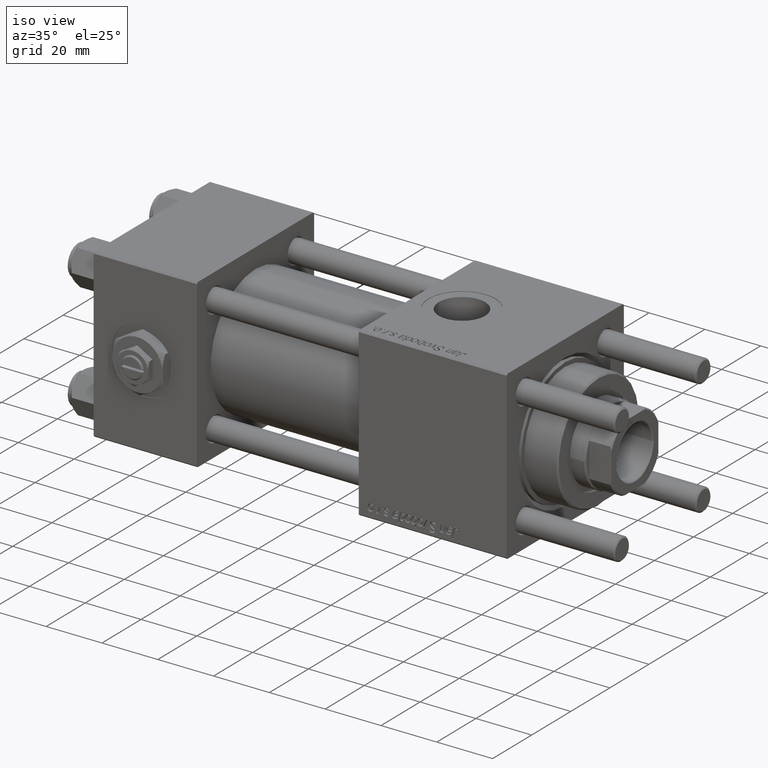
[diagram: clean part render]
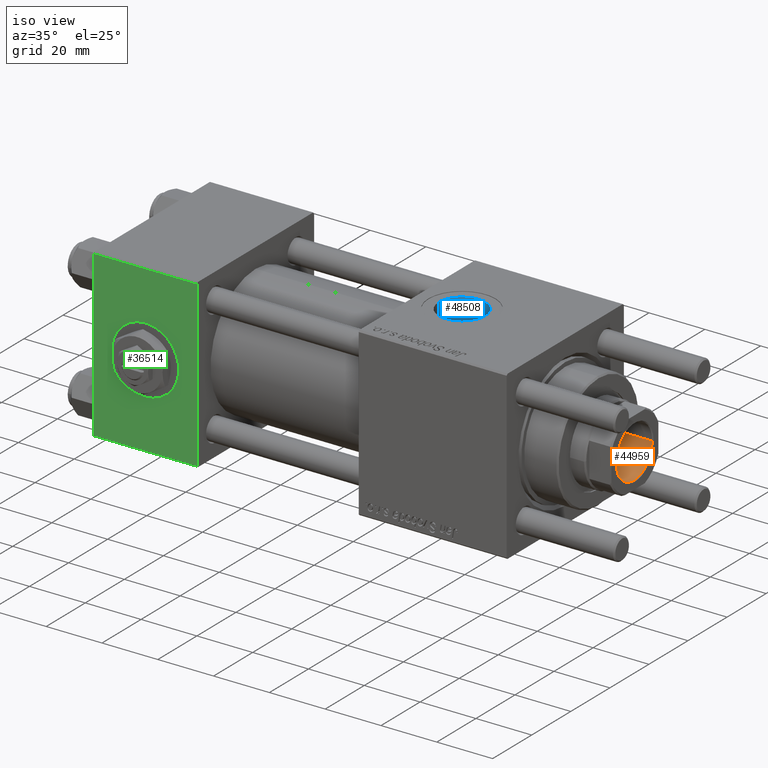
[diagram: same view with three faces highlighted in distinct colors, each labeled with its STEP entity id]
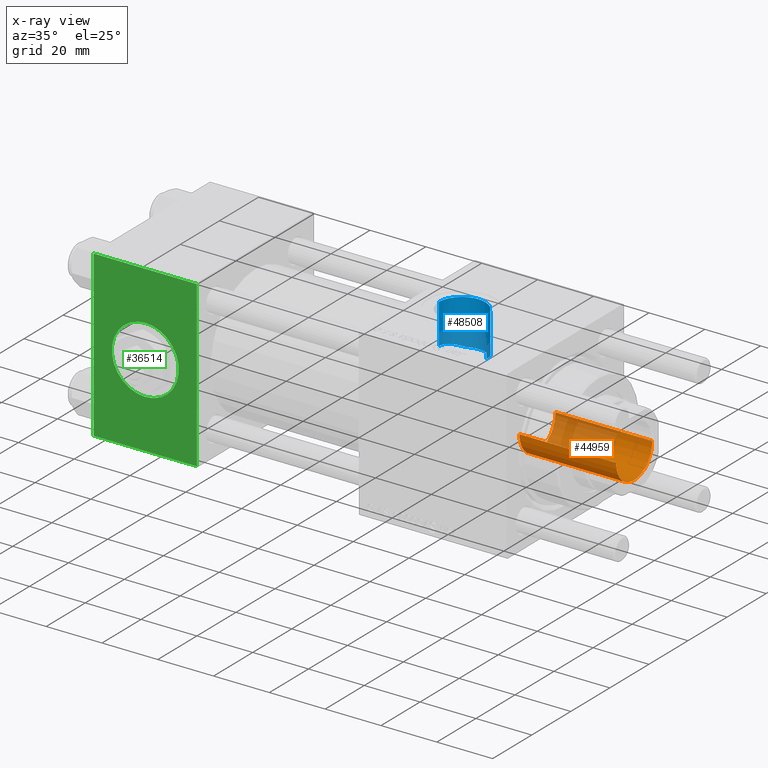
[diagram: x-ray of the same camera — body ghosted, the three highlighted faces saturated]
A machine part, iso view with three faces highlighted in distinct colors.
The next image is the same camera in x-ray (body ghosted, the three faces saturated) — at least one of them is partly hidden behind the body in this view.
Their STEP definitions:

[orange] entity #44959 — the highlighted cylindrical surface (edge-blend (fillet) strip) has radius 9.25 mm, axis along (1, 0, 0).
#1604 = AXIS2_PLACEMENT_3D ( 'NONE', #19206, #37290, #55333 ) ;
#10656 = CARTESIAN_POINT ( 'NONE',  ( -9.249999999999994671, 1.132798289211300909E-15, 135.7000000000000455 ) ) ;
#10857 = CARTESIAN_POINT ( 'NONE',  ( 9.249999999999994671, 0.000000000000000000, 136.0000000000000000 ) ) ;
#10870 = VERTEX_POINT ( 'NONE', #43790 ) ;
#11215 = VECTOR ( 'NONE', #39315, 1000.000000000000000 ) ;
#12747 = DIRECTION ( 'NONE',  ( 1.000000000000000000, 0.000000000000000000, 0.000000000000000000 ) ) ;
#15194 = CARTESIAN_POINT ( 'NONE',  ( -9.249999999999992895, 1.132798289211300712E-15, 101.0000000000000000 ) ) ;
#16261 = ORIENTED_EDGE ( 'NONE', *, *, #45105, .F. ) ;
#16717 = CIRCLE ( 'NONE', #29024, 9.249999999999994671 ) ;
#17857 = EDGE_CURVE ( 'NONE', #10870, #18043, #16717, .T. ) ;
#17989 = EDGE_LOOP ( 'NONE', ( #27373, #16261, #20165, #51186 ) ) ;
#18043 = VERTEX_POINT ( 'NONE', #10656 ) ;
#18426 = CARTESIAN_POINT ( 'NONE',  ( 9.249999999999992895, 0.000000000000000000, 101.0000000000000000 ) ) ;
#19206 = CARTESIAN_POINT ( 'NONE',  ( 0.000000000000000000, 0.000000000000000000, 101.0000000000000000 ) ) ;
#20165 = ORIENTED_EDGE ( 'NONE', *, *, #58157, .T. ) ;
#21795 = DIRECTION ( 'NONE',  ( 0.000000000000000000, 0.000000000000000000, 1.000000000000000000 ) ) ;
#22524 = EDGE_CURVE ( 'NONE', #22958, #18043, #53508, .T. ) ;
#22958 = VERTEX_POINT ( 'NONE', #15194 ) ;
#26380 = FACE_OUTER_BOUND ( 'NONE', #17989, .T. ) ;
#26678 = CYLINDRICAL_SURFACE ( 'NONE', #41310, 9.249999999999994671 ) ;
#27373 = ORIENTED_EDGE ( 'NONE', *, *, #22524, .F. ) ;
#27456 = VECTOR ( 'NONE', #28946, 1000.000000000000000 ) ;
#28946 = DIRECTION ( 'NONE',  ( -0.000000000000000000, -0.000000000000000000, 1.000000000000000000 ) ) ;
#29024 = AXIS2_PLACEMENT_3D ( 'NONE', #54059, #21795, #39866 ) ;
#30238 = CARTESIAN_POINT ( 'NONE',  ( 0.000000000000000000, 0.000000000000000000, 136.0000000000000000 ) ) ;
#35261 = DIRECTION ( 'NONE',  ( -0.000000000000000000, -0.000000000000000000, 1.000000000000000000 ) ) ;
#35662 = CIRCLE ( 'NONE', #1604, 9.249999999999992895 ) ;
#37290 = DIRECTION ( 'NONE',  ( -0.000000000000000000, -0.000000000000000000, 1.000000000000000000 ) ) ;
#37544 = LINE ( 'NONE', #10857, #27456 ) ;
#39315 = DIRECTION ( 'NONE',  ( -0.000000000000000000, -0.000000000000000000, 1.000000000000000000 ) ) ;
#39866 = DIRECTION ( 'NONE',  ( 1.000000000000000000, 0.000000000000000000, 0.000000000000000000 ) ) ;
#41310 = AXIS2_PLACEMENT_3D ( 'NONE', #30238, #35261, #12747 ) ;
#43790 = CARTESIAN_POINT ( 'NONE',  ( 9.249999999999994671, 0.000000000000000000, 135.7000000000000455 ) ) ;
#44646 = CARTESIAN_POINT ( 'NONE',  ( -9.249999999999994671, 1.132798289211300909E-15, 136.0000000000000000 ) ) ;
#44959 = ADVANCED_FACE ( 'NONE', ( #26380 ), #26678, .F. ) ;
#45105 = EDGE_CURVE ( 'NONE', #54427, #22958, #35662, .T. ) ;
#51186 = ORIENTED_EDGE ( 'NONE', *, *, #17857, .T. ) ;
#53508 = LINE ( 'NONE', #44646, #11215 ) ;
#54059 = CARTESIAN_POINT ( 'NONE',  ( 0.000000000000000000, 0.000000000000000000, 135.7000000000000455 ) ) ;
#54427 = VERTEX_POINT ( 'NONE', #18426 ) ;
#55333 = DIRECTION ( 'NONE',  ( 1.000000000000000000, 0.000000000000000000, 0.000000000000000000 ) ) ;
#58157 = EDGE_CURVE ( 'NONE', #54427, #10870, #37544, .T. ) ;

[blue] entity #48508 — the highlighted cylindrical surface (edge-blend (fillet) strip) has radius 8.33 mm, axis along (0, 0, -1).
#358 = CARTESIAN_POINT ( 'NONE',  ( 118.2534000047988201, 4.111271999610754513, 14.94835106229168176 ) ) ;
#634 = CARTESIAN_POINT ( 'NONE',  ( 119.2999999999999545, 0.7063285354568809016, 15.48389808801386103 ) ) ;
#864 = VECTOR ( 'NONE', #14497, 1000.000000000000000 ) ;
#1225 = CARTESIAN_POINT ( 'NONE',  ( 117.4652904211442745, 5.264203456503698142, 14.58139219426319322 ) ) ;
#1748 = EDGE_CURVE ( 'NONE', #47973, #29717, #21411, .T. ) ;
#2582 = CARTESIAN_POINT ( 'NONE',  ( 102.6700000000000017, -3.469446951953613794E-15, 29.79999999999999716 ) ) ;
#3259 = CARTESIAN_POINT ( 'NONE',  ( 102.6975598593861463, 0.7810156608275541368, 15.48513758060886225 ) ) ;
#4986 = VERTEX_POINT ( 'NONE', #48133 ) ;
#6854 = AXIS2_PLACEMENT_3D ( 'NONE', #14820, #33754, #18969 ) ;
#7400 = CARTESIAN_POINT ( 'NONE',  ( 106.9024469684808594, 7.262668436259995808, 13.69461748577755777 ) ) ;
#7696 = CARTESIAN_POINT ( 'NONE',  ( 103.7310443908884849, 4.086272943823808568, 14.95550201764395837 ) ) ;
#10202 = DIRECTION ( 'NONE',  ( -1.000000000000000000, 0.000000000000000000, 0.000000000000000000 ) ) ;
#10684 = CARTESIAN_POINT ( 'NONE',  ( 117.6798436837576389, 4.989036688639971295, 14.67824946145068310 ) ) ;
#11844 = CARTESIAN_POINT ( 'NONE',  ( 102.6699999999996180, -2.713081726590588117E-14, 15.50000000000020428 ) ) ;
#12145 = CARTESIAN_POINT ( 'NONE',  ( 103.1053547801138848, 2.686155454129544484, 15.27016736770789862 ) ) ;
#12445 = CARTESIAN_POINT ( 'NONE',  ( 104.8202029067652745, 5.636575315625639071, 14.44950328828300279 ) ) ;
#12495 = CARTESIAN_POINT ( 'NONE',  ( 119.3300000000000125, 2.755455270027974659E-15, 22.50000000000000355 ) ) ;
#13964 = CARTESIAN_POINT ( 'NONE',  ( 118.7201712771788209, 3.148968827299039930, 15.18062598671783192 ) ) ;
#14258 = CARTESIAN_POINT ( 'NONE',  ( 116.7502179845312753, 6.036956813941138478, 14.27823247417040875 ) ) ;
#14497 = DIRECTION ( 'NONE',  ( 0.000000000000000000, 0.000000000000000000, -1.000000000000000000 ) ) ;
#14545 = CARTESIAN_POINT ( 'NONE',  ( 114.7548501967454939, 7.435724578008534813, 13.59999999999999076 ) ) ;
#14820 = CARTESIAN_POINT ( 'NONE',  ( 111.0000000000000000, -3.469446951953613794E-15, 13.59999999999999076 ) ) ;
#14954 = DIRECTION ( 'NONE',  ( 0.000000000000000000, 0.000000000000000000, -1.000000000000000000 ) ) ;
#17815 = CARTESIAN_POINT ( 'NONE',  ( 119.3200361445783102, 0.4708856903043578401, 22.49630535626710781 ) ) ;
#18969 = DIRECTION ( 'NONE',  ( 1.000000000000000000, 0.000000000000000000, 0.000000000000000000 ) ) ;
#19972 = CYLINDRICAL_SURFACE ( 'NONE', #34843, 8.330000000000003624 ) ;
#21411 = LINE ( 'NONE', #53112, #38539 ) ;
#22159 = EDGE_CURVE ( 'NONE', #42557, #47973, #48105, .T. ) ;
#23424 = VERTEX_POINT ( 'NONE', #29840 ) ;
#23990 = EDGE_CURVE ( 'NONE', #23424, #29717, #45404, .T. ) ;
#24029 = CARTESIAN_POINT ( 'NONE',  ( 118.0738984406374072, 4.412568364522008402, 14.86172045093005423 ) ) ;
#24802 = VERTEX_POINT ( 'NONE', #45997 ) ;
#26062 = CARTESIAN_POINT ( 'NONE',  ( 106.5763594891585910, 7.068460345354880658, 13.79652937211603003 ) ) ;
#26644 = DIRECTION ( 'NONE',  ( -0.000000000000000000, -0.000000000000000000, -1.000000000000000000 ) ) ;
#27416 = CARTESIAN_POINT ( 'NONE',  ( 119.3300000000000125, 2.755455270027974659E-15, 22.50000000000000355 ) ) ;
#27561 = EDGE_CURVE ( 'NONE', #23424, #38036, #53533, .T. ) ;
#28187 = CARTESIAN_POINT ( 'NONE',  ( 119.2378105529334107, 1.437110862293704328, 15.45056201154794806 ) ) ;
#28894 = VERTEX_POINT ( 'NONE', #56069 ) ;
#29329 = ORIENTED_EDGE ( 'NONE', *, *, #27561, .F. ) ;
#29717 = VERTEX_POINT ( 'NONE', #27416 ) ;
#29840 = CARTESIAN_POINT ( 'NONE',  ( 119.2999999999999829, 0.7063285354565354002, 22.48891060056044466 ) ) ;
#29921 = CARTESIAN_POINT ( 'NONE',  ( 102.8066106803055249, 1.552053222944098865, 15.42694403133658909 ) ) ;
#30222 = CARTESIAN_POINT ( 'NONE',  ( 105.6573382553999210, 6.402176101401404473, 14.11876137656380870 ) ) ;
#30260 = EDGE_CURVE ( 'NONE', #42557, #4986, #41467, .T. ) ;
#30520 = CARTESIAN_POINT ( 'NONE',  ( 102.8890011916722216, 1.937150640225431042, 15.38313654488691284 ) ) ;
#30597 = ORIENTED_EDGE ( 'NONE', *, *, #39360, .F. ) ;
#31165 = CARTESIAN_POINT ( 'NONE',  ( 119.3300000000000125, 0.2354428451521802246, 22.50000000000000355 ) ) ;
#32063 = B_SPLINE_CURVE_WITH_KNOTS ( 'NONE', 3,
 ( #14545, #41810, #41221, #14258, #42089, #1225, #10684, #24029, #358, #33200, #13964, #45392, #28187, #634 ),
 .UNSPECIFIED., .F., .F.,
 ( 4, 2, 2, 2, 2, 2, 4 ),
 ( 1.762687342693953287E-17, 0.002167183143396243707, 0.003250774715094356237, 0.004334366286792468333, 0.005417957858490579995, 0.006501549430188692524, 0.008668732573584917583 ),
 .UNSPECIFIED. ) ;
#32390 = CARTESIAN_POINT ( 'NONE',  ( 119.2999999999999545, 0.7063285354568809016, 15.48389808801386103 ) ) ;
#33200 = CARTESIAN_POINT ( 'NONE',  ( 118.5762318573482190, 3.480672338514595232, 15.10763638059241742 ) ) ;
#33309 = CARTESIAN_POINT ( 'NONE',  ( 111.0000000000000000, -3.469446951953613794E-15, 52.79999999999999716 ) ) ;
#33466 = EDGE_LOOP ( 'NONE', ( #49049, #43173, #36127, #56601, #30597, #56778, #29329, #35020 ) ) ;
#33754 = DIRECTION ( 'NONE',  ( 0.000000000000000000, 0.000000000000000000, 1.000000000000000000 ) ) ;
#34648 = CARTESIAN_POINT ( 'NONE',  ( 103.5505958705756484, 3.747264868531968940, 15.04448363899141938 ) ) ;
#34843 = AXIS2_PLACEMENT_3D ( 'NONE', #33309, #14954, #10202 ) ;
#34937 = DIRECTION ( 'NONE',  ( 1.000000000000000000, 0.000000000000000000, 0.000000000000000000 ) ) ;
#35020 = ORIENTED_EDGE ( 'NONE', *, *, #23990, .T. ) ;
#36127 = ORIENTED_EDGE ( 'NONE', *, *, #30260, .T. ) ;
#37023 = CARTESIAN_POINT ( 'NONE',  ( 102.6700000000000017, -3.469446951953613794E-15, 52.79999999999999716 ) ) ;
#37470 = FACE_OUTER_BOUND ( 'NONE', #33466, .T. ) ;
#38036 = VERTEX_POINT ( 'NONE', #32390 ) ;
#38528 = EDGE_CURVE ( 'NONE', #4986, #24802, #50693, .T. ) ;
#38539 = VECTOR ( 'NONE', #48671, 1000.000000000000000 ) ;
#39360 = EDGE_CURVE ( 'NONE', #28894, #24802, #41886, .T. ) ;
#41221 = CARTESIAN_POINT ( 'NONE',  ( 115.9653705457623687, 6.724419165648845009, 13.97437896738289176 ) ) ;
#41467 = LINE ( 'NONE', #37023, #864 ) ;
#41810 = CARTESIAN_POINT ( 'NONE',  ( 115.3902205841902457, 7.114878828643538711, 13.77542063413991080 ) ) ;
#41886 = CIRCLE ( 'NONE', #6854, 8.330000000000003624 ) ;
#42089 = CARTESIAN_POINT ( 'NONE',  ( 117.0000841562241334, 5.788852077867683299, 14.38116921446069618 ) ) ;
#42557 = VERTEX_POINT ( 'NONE', #2582 ) ;
#43173 = ORIENTED_EDGE ( 'NONE', *, *, #22159, .F. ) ;
#43841 = CARTESIAN_POINT ( 'NONE',  ( 102.6699999999999591, 0.3922003781329697625, 15.50000000000000711 ) ) ;
#44123 = CARTESIAN_POINT ( 'NONE',  ( 107.2451498032545061, 7.435724578008534813, 13.59999999999999076 ) ) ;
#44366 = CARTESIAN_POINT ( 'NONE',  ( 119.2999999999999829, 0.7063285354565354002, 52.79999999999999716 ) ) ;
#44671 = DIRECTION ( 'NONE',  ( 0.000000000000000000, 0.000000000000000000, -1.000000000000000000 ) ) ;
#45392 = CARTESIAN_POINT ( 'NONE',  ( 119.0827063978108953, 2.138072539438088615, 15.36711703318994360 ) ) ;
#45404 = B_SPLINE_CURVE_WITH_KNOTS ( 'NONE', 3,
 ( #49795, #17815, #31165, #12495 ),
 .UNSPECIFIED., .F., .F.,
 ( 4, 4 ),
 ( 0.000000000000000000, 0.0007063285354565328363 ),
 .UNSPECIFIED. ) ;
#45997 = CARTESIAN_POINT ( 'NONE',  ( 107.2451498032545061, 7.435724578008534813, 13.59999999999999076 ) ) ;
#47296 = VECTOR ( 'NONE', #44671, 1000.000000000000000 ) ;
#47973 = VERTEX_POINT ( 'NONE', #51237 ) ;
#47982 = CARTESIAN_POINT ( 'NONE',  ( 104.3389503160342855, 5.060146834073014688, 14.66641001412193823 ) ) ;
#48105 = CIRCLE ( 'NONE', #52837, 8.330000000000003624 ) ;
#48133 = CARTESIAN_POINT ( 'NONE',  ( 102.6699999999996180, -2.713081726590588117E-14, 15.50000000000020428 ) ) ;
#48289 = CARTESIAN_POINT ( 'NONE',  ( 105.9544709984673005, 6.638852620574125396, 14.00831860901981685 ) ) ;
#48508 = ADVANCED_FACE ( 'NONE', ( #37470 ), #19972, .F. ) ;
#48671 = DIRECTION ( 'NONE',  ( 0.000000000000000000, 0.000000000000000000, -1.000000000000000000 ) ) ;
#48853 = CARTESIAN_POINT ( 'NONE',  ( 111.0000000000000000, -3.469446951953613794E-15, 29.79999999999999716 ) ) ;
#49049 = ORIENTED_EDGE ( 'NONE', *, *, #1748, .F. ) ;
#49795 = CARTESIAN_POINT ( 'NONE',  ( 119.2999999999999829, 0.7063285354565354002, 22.48891060056044466 ) ) ;
#50693 = B_SPLINE_CURVE_WITH_KNOTS ( 'NONE', 3,
 ( #11844, #43841, #3259, #29921, #30520, #12145, #53020, #34648, #7696, #47982, #12445, #30222, #48289, #26062, #7400, #44123 ),
 .UNSPECIFIED., .F., .F.,
 ( 4, 2, 2, 2, 2, 2, 2, 4 ),
 ( 0.009374448786900189609, 0.01054305657029121907, 0.01171166435368224679, 0.01288027213707327798, 0.01404887992046430570, 0.01638609548724638543, 0.01755470327063740621, 0.01872331105402843393 ),
 .UNSPECIFIED. ) ;
#51237 = CARTESIAN_POINT ( 'NONE',  ( 119.3300000000000125, -2.449316168263869821E-15, 29.79999999999999716 ) ) ;
#52827 = EDGE_CURVE ( 'NONE', #28894, #38036, #32063, .T. ) ;
#52837 = AXIS2_PLACEMENT_3D ( 'NONE', #48853, #26644, #34937 ) ;
#53020 = CARTESIAN_POINT ( 'NONE',  ( 103.2381405738433386, 3.047811366702672498, 15.20162253944664776 ) ) ;
#53112 = CARTESIAN_POINT ( 'NONE',  ( 119.3300000000000125, -2.449316168263869032E-15, 52.79999999999999716 ) ) ;
#53533 = LINE ( 'NONE', #44366, #47296 ) ;
#56069 = CARTESIAN_POINT ( 'NONE',  ( 114.7548501967454939, 7.435724578008534813, 13.59999999999999076 ) ) ;
#56601 = ORIENTED_EDGE ( 'NONE', *, *, #38528, .T. ) ;
#56778 = ORIENTED_EDGE ( 'NONE', *, *, #52827, .T. ) ;

[green] entity #36514 — the highlighted planar face has unit normal (0, 1, 0).
#1890 = VECTOR ( 'NONE', #23725, 1000.000000000000000 ) ;
#2150 = DIRECTION ( 'NONE',  ( 0.000000000000000000, -1.000000000000000000, -8.673617379884036705E-17 ) ) ;
#2913 = DIRECTION ( 'NONE',  ( 0.000000000000000000, 0.000000000000000000, -1.000000000000000000 ) ) ;
#3297 = VERTEX_POINT ( 'NONE', #36369 ) ;
#3575 = VERTEX_POINT ( 'NONE', #32712 ) ;
#3858 = CARTESIAN_POINT ( 'NONE',  ( 37.00000000000000000, -30.00000000000000000, -29.50000000000001776 ) ) ;
#4242 = EDGE_CURVE ( 'NONE', #43642, #38345, #13997, .T. ) ;
#5631 = PLANE ( 'NONE',  #43653 ) ;
#5918 = CARTESIAN_POINT ( 'NONE',  ( 37.00000000000000000, -30.00000000000000000, 29.99999999999999289 ) ) ;
#6423 = CARTESIAN_POINT ( 'NONE',  ( 0.000000000000000000, -30.00000000000000000, -29.50000000000001776 ) ) ;
#9176 = AXIS2_PLACEMENT_3D ( 'NONE', #25429, #17412, #2913 ) ;
#11057 = CIRCLE ( 'NONE', #9176, 12.00000000000000178 ) ;
#11612 = CARTESIAN_POINT ( 'NONE',  ( 37.00000000000000000, -30.00000000000000000, 29.49999999999999289 ) ) ;
#12503 = CARTESIAN_POINT ( 'NONE',  ( 18.50000000000000000, -30.00000000000000000, 0.000000000000000000 ) ) ;
#12509 = LINE ( 'NONE', #11612, #40732 ) ;
#13001 = EDGE_CURVE ( 'NONE', #48249, #27377, #30803, .T. ) ;
#13997 = CIRCLE ( 'NONE', #47108, 12.00000000000000178 ) ;
#15401 = LINE ( 'NONE', #37636, #1890 ) ;
#17240 = DIRECTION ( 'NONE',  ( -1.000000000000000000, 0.000000000000000000, 0.000000000000000000 ) ) ;
#17412 = DIRECTION ( 'NONE',  ( 0.000000000000000000, -1.000000000000000000, -8.673617379884036705E-17 ) ) ;
#18947 = FACE_BOUND ( 'NONE', #46065, .T. ) ;
#19239 = DIRECTION ( 'NONE',  ( 0.000000000000000000, -0.000000000000000000, 1.000000000000000000 ) ) ;
#20200 = DIRECTION ( 'NONE',  ( 0.000000000000000000, 0.000000000000000000, -1.000000000000000000 ) ) ;
#20992 = ORIENTED_EDGE ( 'NONE', *, *, #28593, .T. ) ;
#22550 = ORIENTED_EDGE ( 'NONE', *, *, #4242, .F. ) ;
#23725 = DIRECTION ( 'NONE',  ( 0.000000000000000000, 0.000000000000000000, -1.000000000000000000 ) ) ;
#25429 = CARTESIAN_POINT ( 'NONE',  ( 18.50000000000000000, -30.00000000000000000, 0.000000000000000000 ) ) ;
#26379 = EDGE_CURVE ( 'NONE', #3575, #48249, #15401, .T. ) ;
#26484 = DIRECTION ( 'NONE',  ( 0.000000000000000000, 0.000000000000000000, -1.000000000000000000 ) ) ;
#27377 = VERTEX_POINT ( 'NONE', #33121 ) ;
#27937 = VECTOR ( 'NONE', #39998, 1000.000000000000000 ) ;
#27978 = ORIENTED_EDGE ( 'NONE', *, *, #47927, .F. ) ;
#28593 = EDGE_CURVE ( 'NONE', #3297, #3575, #12509, .T. ) ;
#30803 = LINE ( 'NONE', #3858, #27937 ) ;
#32712 = CARTESIAN_POINT ( 'NONE',  ( 0.000000000000000000, -30.00000000000000000, 29.49999999999999289 ) ) ;
#32902 = ORIENTED_EDGE ( 'NONE', *, *, #26379, .T. ) ;
#33121 = CARTESIAN_POINT ( 'NONE',  ( 37.00000000000000000, -30.00000000000000000, -29.50000000000001776 ) ) ;
#33860 = VECTOR ( 'NONE', #26484, 1000.000000000000000 ) ;
#35097 = CARTESIAN_POINT ( 'NONE',  ( 18.50000000000000000, -30.00000000000000000, 12.00000000000000178 ) ) ;
#36369 = CARTESIAN_POINT ( 'NONE',  ( 37.00000000000000000, -30.00000000000000000, 29.49999999999999289 ) ) ;
#36514 = ADVANCED_FACE ( 'NONE', ( #18947, #37037 ), #5631, .F. ) ;
#37037 = FACE_OUTER_BOUND ( 'NONE', #51074, .T. ) ;
#37636 = CARTESIAN_POINT ( 'NONE',  ( 0.000000000000000000, -30.00000000000000000, 29.99999999999999289 ) ) ;
#38230 = CARTESIAN_POINT ( 'NONE',  ( 18.50000000000000000, -30.00000000000000000, -12.00000000000000178 ) ) ;
#38345 = VERTEX_POINT ( 'NONE', #38230 ) ;
#39998 = DIRECTION ( 'NONE',  ( 1.000000000000000000, 0.000000000000000000, 0.000000000000000000 ) ) ;
#40732 = VECTOR ( 'NONE', #17240, 1000.000000000000000 ) ;
#42055 = DIRECTION ( 'NONE',  ( -0.000000000000000000, 1.000000000000000000, 0.000000000000000000 ) ) ;
#43642 = VERTEX_POINT ( 'NONE', #35097 ) ;
#43653 = AXIS2_PLACEMENT_3D ( 'NONE', #5918, #42055, #19239 ) ;
#45359 = EDGE_CURVE ( 'NONE', #38345, #43642, #11057, .T. ) ;
#46065 = EDGE_LOOP ( 'NONE', ( #58378, #22550 ) ) ;
#47108 = AXIS2_PLACEMENT_3D ( 'NONE', #12503, #2150, #20200 ) ;
#47927 = EDGE_CURVE ( 'NONE', #3297, #27377, #58447, .T. ) ;
#48249 = VERTEX_POINT ( 'NONE', #6423 ) ;
#51074 = EDGE_LOOP ( 'NONE', ( #32902, #53234, #27978, #20992 ) ) ;
#53234 = ORIENTED_EDGE ( 'NONE', *, *, #13001, .T. ) ;
#58147 = CARTESIAN_POINT ( 'NONE',  ( 37.00000000000000000, -30.00000000000000000, 29.99999999999999289 ) ) ;
#58378 = ORIENTED_EDGE ( 'NONE', *, *, #45359, .F. ) ;
#58447 = LINE ( 'NONE', #58147, #33860 ) ;